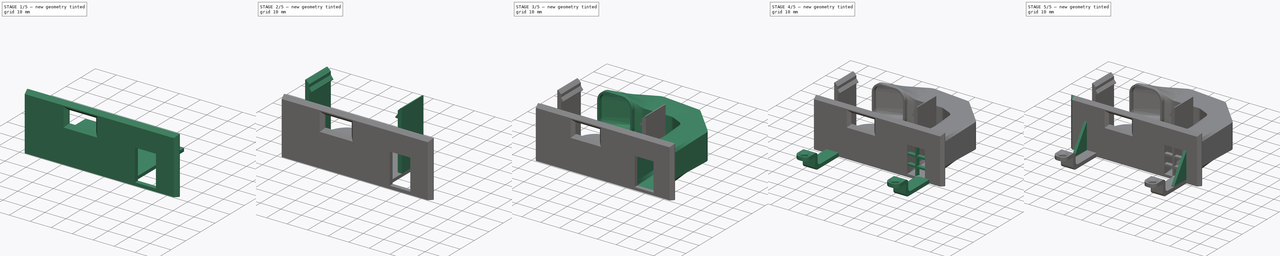
[diagram: build sequence overview — one tinted view per stage of 5, left to right]
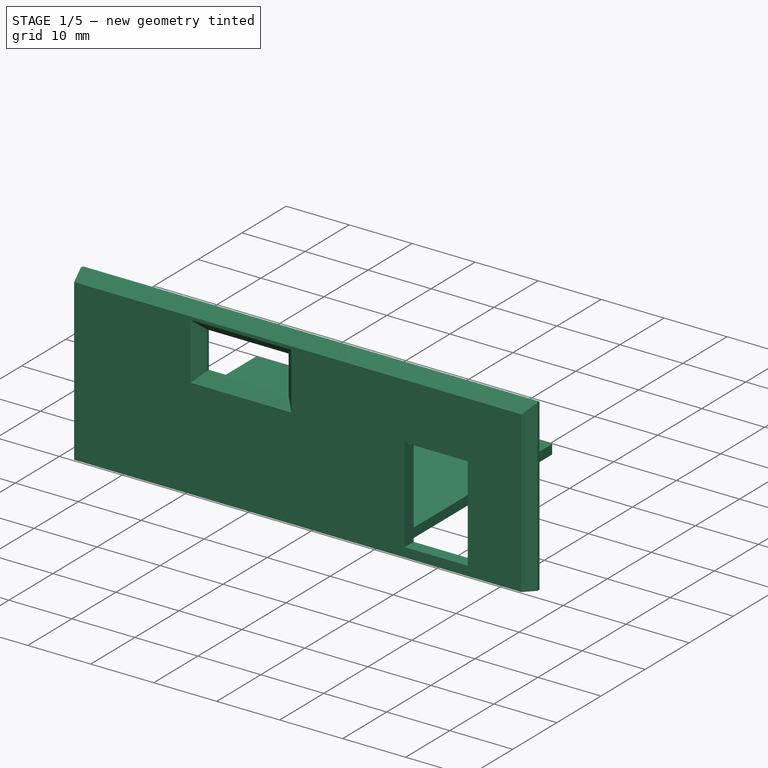
[diagram: stage 1 of 5 — iso view after this stage's code; geometry added in this stage tinted green]
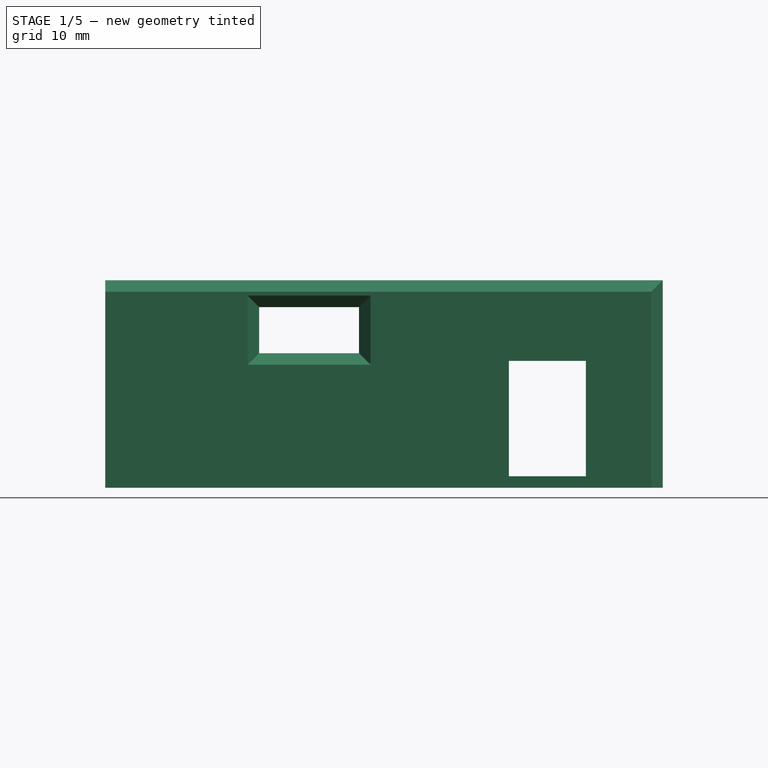
[diagram: stage 1 of 5 — front view after this stage's code; geometry added in this stage tinted green]
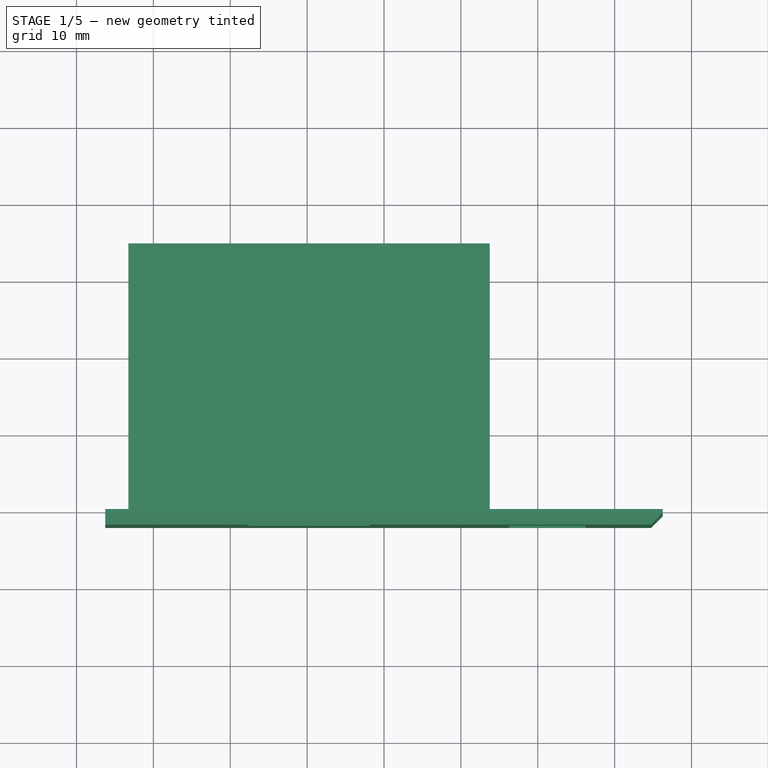
[diagram: stage 1 of 5 — top view after this stage's code; geometry added in this stage tinted green]
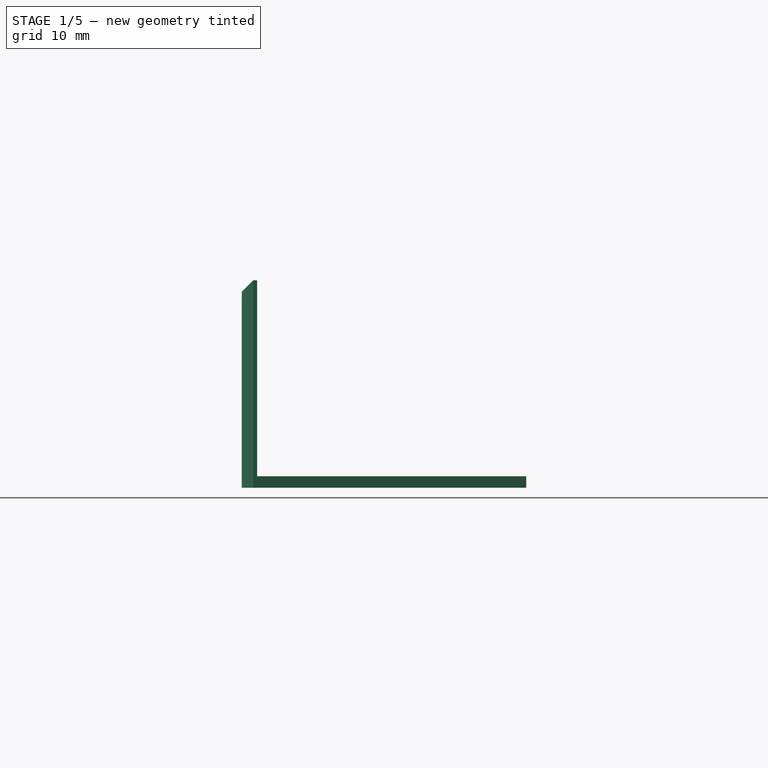
[diagram: stage 1 of 5 — right view after this stage's code; geometry added in this stage tinted green]
FCSTD DOCUMENT  (FreeCAD 0.20R29603 (Git))
Label: Encaixe honeywell
License: All rights reserved
LicenseURL: http://en.wikipedia.org/wiki/All_rights_reserved
objects: Sketcher::SketchObject×18, PartDesign::Pad×11, PartDesign::Chamfer×6, PartDesign::Fillet×6, PartDesign::Pocket×3, PartDesign::Plane×1, PartDesign::AdditiveLoft×1, PartDesign::Body×1
note: 74 computed .brp shape members not serialized (recipe doc carries the construction recipe); baked Part::Feature solids carry a one-line shape summary decoded from their .brp

FEATURE [Sketcher::SketchObject] Sketch
  FullyConstrained = true
  MapMode = 5
  Placement = pos=(0,0,0) rot=(1,0,0;1.5708rad)
  Support = -> [XZ_Plane]
  sketch-geometry (5):
    g0: LineSegment StartX=36.25 StartY=-13.5 StartZ=0 EndX=36.25 EndY=13.5 EndZ=0
    g1: LineSegment StartX=36.25 StartY=13.5 StartZ=0 EndX=-36.25 EndY=13.5 EndZ=0
    g2: LineSegment StartX=-36.25 StartY=13.5 StartZ=0 EndX=-36.25 EndY=-13.5 EndZ=0
    g3: LineSegment StartX=-36.25 StartY=-13.5 StartZ=0 EndX=36.25 EndY=-13.5 EndZ=0
    g4: GeomPoint X=0 Y=0 Z=0
  constraints (12):
    c: Coincident(g0,g1)
    c: Coincident(g1,g2)
    c: Coincident(g2,g3)
    c: Coincident(g3,g0)
    c: Horizontal(g1)
    c: Horizontal(g3)
    c: Vertical(g0)
    c: Vertical(g2)
    c: Symmetric(g1,g0,g4)
    c: Coincident(g4,g-1)
    c: DistanceX(g1,g1) = 72.5
    c: DistanceY(g2,g2) = 27
FEATURE [PartDesign::Pad] Pad
  Direction = (0,-1,-2e-16)
  Length = 2
  Length2 = 10
  Placement = pos=(0,0,0) rot=(1,0,0;1.5708rad)
  Profile = -> Sketch
  ReferenceAxis = -> Sketch [N_Axis]
  Type = 0
FEATURE [Sketcher::SketchObject] Sketch001
  ExternalGeometry = -> [Pad]
  FullyConstrained = true
  MapMode = 5
  Placement = pos=(0,-2,0) rot=(1,0,0;1.5708rad)
  Support = -> [Pad]
  sketch-geometry (4):
    g0: LineSegment StartX=-16.25 StartY=10 StartZ=0 EndX=-3.25 EndY=10 EndZ=0
    g1: LineSegment StartX=-3.25 StartY=10 StartZ=0 EndX=-3.25 EndY=4 EndZ=0
    g2: LineSegment StartX=-3.25 StartY=4 StartZ=0 EndX=-16.25 EndY=4 EndZ=0
    g3: LineSegment StartX=-16.25 StartY=4 StartZ=0 EndX=-16.25 EndY=10 EndZ=0
  constraints (12):
    c: Coincident(g0,g1)
    c: Coincident(g1,g2)
    c: Coincident(g2,g3)
    c: Coincident(g3,g0)
    c: Horizontal(g0)
    c: Horizontal(g2)
    c: Vertical(g1)
    c: Vertical(g3)
    c: DistanceY(g1,g1) = 6
    c: DistanceX(g0,g0) = 13
    c: DistanceX(g-3,g2) = 20
    c: DistanceY(g-3,g2) = 17.5
FEATURE [PartDesign::Pocket] Pocket
  BaseFeature = -> Pad
  Direction = (0,1,2e-16)
  Length = 5
  Length2 = 5
  Placement = pos=(0,0,0) rot=(1,0,0;1.5708rad)
  Profile = -> Sketch001
  ReferenceAxis = -> Sketch001 [N_Axis]
  Type = 0
FEATURE [PartDesign::Chamfer] Chamfer
  Angle = 45
  Base = -> Pocket [Edge10,Edge4,Edge17,Edge20,Edge18,Edge19]
  BaseFeature = -> Pocket
  ChamferType = 0
  FlipDirection = false
  Placement = pos=(0,0,0) rot=(1,0,0;1.5708rad)
  Size = 1.5
  Size2 = 1
  SupportTransform = false
  UseAllEdges = false
FEATURE [Sketcher::SketchObject] Sketch002
  ExternalGeometry = -> [Chamfer]
  FullyConstrained = true
  MapMode = 5
  Placement = pos=(0,-2,0) rot=(1,0,0;1.5708rad)
  Support = -> [Chamfer]
  sketch-geometry (5):
    g0: LineSegment StartX=11.75 StartY=-13.5 StartZ=0 EndX=11.75 EndY=0 EndZ=0
    g1: LineSegment StartX=16.25 StartY=-12 StartZ=0 EndX=26.25 EndY=-12 EndZ=0
    g2: LineSegment StartX=26.25 StartY=-12 StartZ=0 EndX=26.25 EndY=3 EndZ=0
    g3: LineSegment StartX=26.25 StartY=3 StartZ=0 EndX=16.25 EndY=3 EndZ=0
    g4: LineSegment StartX=16.25 StartY=3 StartZ=0 EndX=16.25 EndY=-12 EndZ=0
  constraints (16):
    c: PointOnObject(g0,g-3)
    c: Vertical(g0)
    c: DistanceX(g-3,g0) = 48
    c: Coincident(g1,g2)
    c: Coincident(g2,g3)
    c: Coincident(g3,g4)
    c: Coincident(g4,g1)
    c: Horizontal(g1)
    c: Horizontal(g3)
    c: Vertical(g2)
    c: Vertical(g4)
    c: DistanceX(g3,g3) = 10
    c: DistanceY(g2,g2) = 15
    c: DistanceY(g0,g1) = 1.5
    c: DistanceX(g0,g1) = 4.5
    c: PointOnObject(g0,g-1)
FEATURE [PartDesign::Pocket] Pocket001
  BaseFeature = -> Chamfer
  Direction = (0,1,2e-16)
  Length = 5
  Length2 = 5
  Placement = pos=(0,0,0) rot=(1,0,0;1.5708rad)
  Profile = -> Sketch002
  ReferenceAxis = -> Sketch002 [N_Axis]
  Type = 0
FEATURE [Sketcher::SketchObject] Sketch003
  ExternalGeometry = -> [Pocket001]
  FullyConstrained = true
  MapMode = 5
  Placement = pos=(0,0,0) rot=(-1,0,0;1.5708rad)
  Support = -> [Pocket001]
  sketch-geometry (10):
    g0: GeomPoint X=21.25 Y=4.5 Z=0
    g1: LineSegment StartX=27.25 StartY=-4 StartZ=0 EndX=27.25 EndY=13 EndZ=0
    g2: LineSegment StartX=27.25 StartY=13 StartZ=0 EndX=15.25 EndY=13 EndZ=0
    g3: LineSegment StartX=15.25 StartY=13 StartZ=0 EndX=15.25 EndY=-4 EndZ=0
    g4: LineSegment StartX=15.25 StartY=-4 StartZ=0 EndX=27.25 EndY=-4 EndZ=0
    g5: GeomPoint X=21.25 Y=4.5 Z=0
    g6: LineSegment StartX=16.25 StartY=12 StartZ=0 EndX=26.25 EndY=12 EndZ=0
    g7: LineSegment StartX=26.25 StartY=12 StartZ=0 EndX=26.25 EndY=-3 EndZ=0
    g8: LineSegment StartX=26.25 StartY=-3 StartZ=0 EndX=16.25 EndY=-3 EndZ=0
    g9: LineSegment StartX=16.25 StartY=-3 StartZ=0 EndX=16.25 EndY=12 EndZ=0
  constraints (23):
    c: Symmetric(g-3,g-4,g0)
    c: Coincident(g1,g2)
    c: Coincident(g2,g3)
    c: Coincident(g3,g4)
    c: Coincident(g4,g1)
    c: Horizontal(g2)
    c: Horizontal(g4)
    c: Vertical(g1)
    c: Vertical(g3)
    c: Symmetric(g2,g1,g5)
    c: Coincident(g5,g0)
    c: DistanceX(g2,g-3) = 1
    c: DistanceY(g-3,g2) = 1
    c: Coincident(g6,g7)
    c: Coincident(g7,g8)
    c: Coincident(g8,g9)
    c: Coincident(g9,g6)
    c: Horizontal(g6)
    c: Horizontal(g8)
    c: Vertical(g7)
    c: Vertical(g9)
    c: Coincident(g6,g-3)
    c: Coincident(g7,g-4)
FEATURE [Sketcher::SketchObject] Sketch004
  ExternalGeometry = -> [Pocket001]
  FullyConstrained = true
  MapMode = 5
  Placement = pos=(0,0,0) rot=(-1,0,0;1.5708rad)
  Support = -> [Pocket001]
  sketch-geometry (5):
    g0: LineSegment StartX=-33.25 StartY=13.5 StartZ=0 EndX=13.75 EndY=13.5 EndZ=0
    g1: LineSegment StartX=13.75 StartY=13.5 StartZ=0 EndX=13.75 EndY=12 EndZ=0
    g2: LineSegment StartX=13.75 StartY=12 StartZ=0 EndX=-33.25 EndY=12 EndZ=0
    g3: LineSegment StartX=-33.25 StartY=12 StartZ=0 EndX=-33.25 EndY=13.5 EndZ=0
    g4: LineSegment StartX=-9.75 StartY=-4 StartZ=0 EndX=-9.75 EndY=12 EndZ=0
  constraints (14):
    c: Coincident(g0,g1)
    c: Coincident(g1,g2)
    c: Coincident(g2,g3)
    c: Coincident(g3,g0)
    c: Horizontal(g0)
    c: Horizontal(g2)
    c: Vertical(g1)
    c: Vertical(g3)
    c: Vertical(g4)
    c: Symmetric(g-3,g-3,g4)
    c: Symmetric(g1,g2,g4)
    c: PointOnObject(g0,g-4)
    c: DistanceY(g1,g1) = 1.5
    c: DistanceX(g0,g0) = 47
FEATURE [PartDesign::Pad] Pad001
  BaseFeature = -> Pocket001
  Direction = (0,1,2e-16)
  Length = 35
  Length2 = 10
  Placement = pos=(0,0,0) rot=(1,0,0;1.5708rad)
  Profile = -> Sketch004
  ReferenceAxis = -> Sketch004 [N_Axis]
  Type = 0
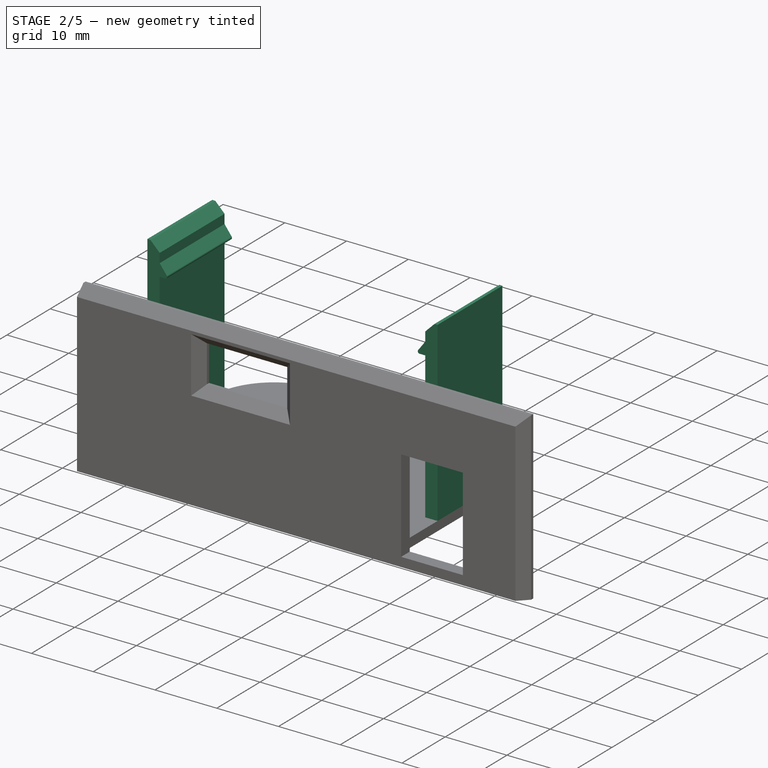
[diagram: stage 2 of 5 — iso view after this stage's code; geometry added in this stage tinted green]
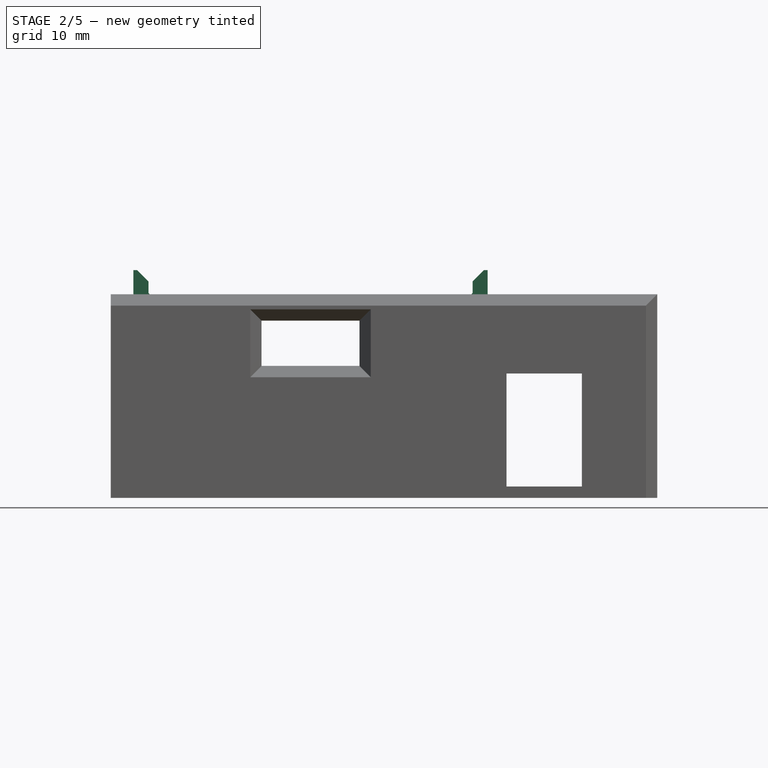
[diagram: stage 2 of 5 — front view after this stage's code; geometry added in this stage tinted green]
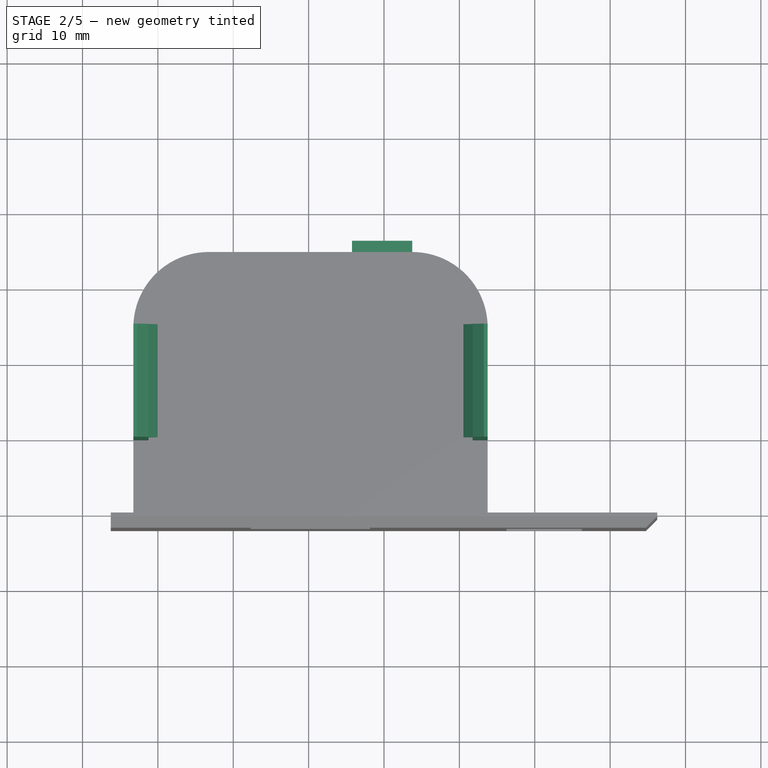
[diagram: stage 2 of 5 — top view after this stage's code; geometry added in this stage tinted green]
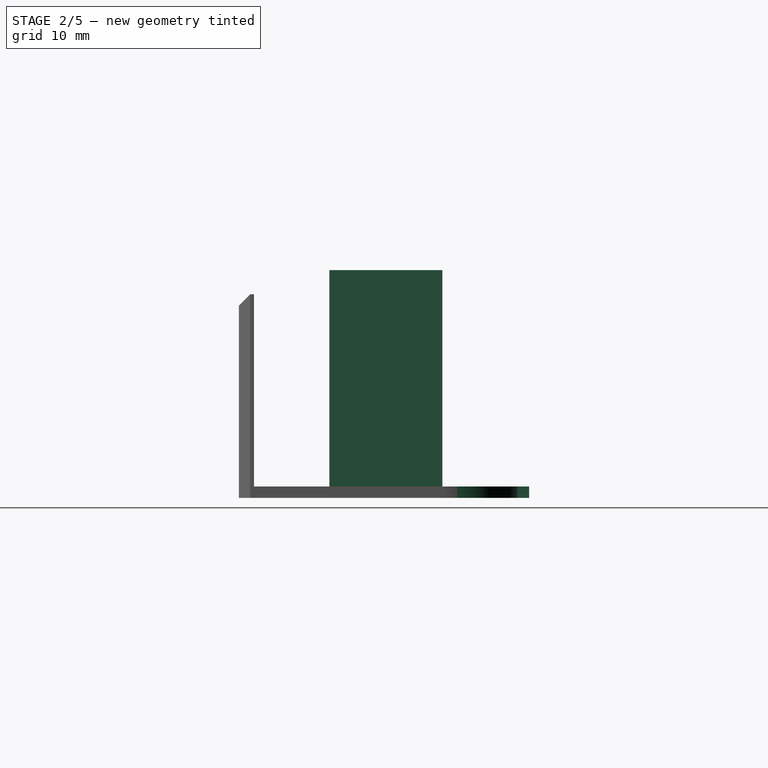
[diagram: stage 2 of 5 — right view after this stage's code; geometry added in this stage tinted green]
FEATURE [Sketcher::SketchObject] Sketch005
  ExternalGeometry = -> [Pad001]
  FullyConstrained = true
  MapMode = 5
  Placement = pos=(0,-2.7e-15,-12) rot=(0,0,1;3.14159rad)
  Support = -> [Pad001]
  sketch-geometry (11):
    g0: LineSegment StartX=-13.75 StartY=-10 StartZ=0 EndX=-11.75 EndY=-10 EndZ=0
    g1: LineSegment StartX=-11.75 StartY=-10 StartZ=0 EndX=-11.75 EndY=-25 EndZ=0
    g2: LineSegment StartX=-11.75 StartY=-25 StartZ=0 EndX=-13.75 EndY=-25 EndZ=0
    g3: LineSegment StartX=-13.75 StartY=-25 StartZ=0 EndX=-13.75 EndY=-10 EndZ=0
    g4: LineSegment StartX=33.25 StartY=-10 StartZ=0 EndX=31.25 EndY=-10 EndZ=0
    g5: LineSegment StartX=31.25 StartY=-10 StartZ=0 EndX=31.25 EndY=-25 EndZ=0
    g6: LineSegment StartX=31.25 StartY=-25 StartZ=0 EndX=33.25 EndY=-25 EndZ=0
    g7: LineSegment StartX=33.25 StartY=-25 StartZ=0 EndX=33.25 EndY=-10 EndZ=0
    g8: GeomPoint X=-13.75 Y=-17.5 Z=0
    g9: GeomPoint X=33.25 Y=-17.5 Z=0
    g10: LineSegment StartX=33.25 StartY=-17.5 StartZ=0 EndX=-13.75 EndY=-17.5 EndZ=0
  constraints (27):
    c: Coincident(g0,g1)
    c: Coincident(g1,g2)
    c: Coincident(g2,g3)
    c: Coincident(g3,g0)
    c: Horizontal(g0)
    c: Horizontal(g2)
    c: Vertical(g1)
    c: Vertical(g3)
    c: PointOnObject(g0,g-3)
    c: Coincident(g4,g5)
    c: Coincident(g5,g6)
    c: Coincident(g6,g7)
    c: Coincident(g7,g4)
    c: Horizontal(g4)
    c: Horizontal(g6)
    c: Vertical(g5)
    c: Vertical(g7)
    c: Symmetric(g0,g2,g8)
    c: Symmetric(g4,g6,g9)
    c: Equal(g1,g5)
    c: Equal(g4,g0)
    c: Coincident(g10,g9)
    c: Coincident(g10,g8)
    c: Horizontal(g10)
    c: DistanceX(g0,g0) = 2
    c: Symmetric(g-4,g-4,g9)
    c: DistanceY(g5,g5) = 15
FEATURE [PartDesign::Pad] Pad002
  BaseFeature = -> Pad001
  Direction = (0,-2e-16,1)
  Length = 23.7
  Length2 = 10
  Placement = pos=(0,0,0) rot=(1,0,0;1.5708rad)
  Profile = -> Sketch005
  ReferenceAxis = -> Sketch005 [N_Axis]
  Type = 0
FEATURE [Sketcher::SketchObject] Sketch006
  ExternalGeometry = -> [Pad002]
  FullyConstrained = true
  MapMode = 5
  Placement = pos=(0,25,-5.6e-15) rot=(-1,0,0;1.5708rad)
  Support = -> [Pad002]
  sketch-geometry (10):
    g0: LineSegment StartX=13.75 StartY=-11.7 StartZ=0 EndX=10.25 EndY=-11.7 EndZ=0
    g1: LineSegment StartX=10.25 StartY=-11.7 StartZ=0 EndX=11.75 EndY=-13.7 EndZ=0
    g2: LineSegment StartX=11.75 StartY=-13.7 StartZ=0 EndX=11.75 EndY=-16.7 EndZ=0
    g3: LineSegment StartX=11.75 StartY=-16.7 StartZ=0 EndX=13.75 EndY=-16.7 EndZ=0
    g4: LineSegment StartX=13.75 StartY=-16.7 StartZ=0 EndX=13.75 EndY=-11.7 EndZ=0
    g5: LineSegment StartX=-29.75 StartY=-11.7 StartZ=0 EndX=-33.25 EndY=-11.7 EndZ=0
    g6: LineSegment StartX=-33.25 StartY=-11.7 StartZ=0 EndX=-33.25 EndY=-16.7 EndZ=0
    g7: LineSegment StartX=-33.25 StartY=-16.7 StartZ=0 EndX=-31.25 EndY=-16.7 EndZ=0
    g8: LineSegment StartX=-31.25 StartY=-16.7 StartZ=0 EndX=-31.25 EndY=-13.7 EndZ=0
    g9: LineSegment StartX=-31.25 StartY=-13.7 StartZ=0 EndX=-29.75 EndY=-11.7 EndZ=0
  constraints (28):
    c: Horizontal(g0)
    c: Coincident(g0,g1)
    c: Coincident(g1,g2)
    c: Vertical(g2)
    c: Coincident(g2,g3)
    c: Coincident(g3,g4)
    c: Coincident(g4,g0)
    c: Vertical(g4)
    c: Horizontal(g5)
    c: Coincident(g5,g6)
    c: Vertical(g6)
    c: Coincident(g6,g7)
    c: Coincident(g7,g8)
    c: Vertical(g8)
    c: Coincident(g8,g9)
    c: Coincident(g9,g5)
    c: Coincident(g0,g-3)
    c: Coincident(g5,g-4)
    c: Equal(g7,g3)
    c: PointOnObject(g-3,g2)
    c: Equal(g0,g5)
    c: DistanceX(g0,g-3) = 1.5
    c: Equal(g2,g8)
    c: Horizontal(g3)
    c: Horizontal(g7)
    c: Equal(g4,g6)
    c: DistanceY(g4,g4) = 5
    c: DistanceY(g1,g-3) = 2
FEATURE [PartDesign::Pad] Pad003
  BaseFeature = -> Pad002
  Direction = (0,1,2e-16)
  Length = 10
  Length2 = 10
  Placement = pos=(0,0,0) rot=(1,0,0;1.5708rad)
  Profile = -> Sketch006
  ReferenceAxis = -> Sketch006 [N_Axis]
  Refine = true
  Reversed = true
  Type = 3
  UpToFace = -> Pad002 [Face32]
FEATURE [PartDesign::Chamfer] Chamfer001
  Angle = 45
  Base = -> Pad003 [Edge93,Edge84]
  BaseFeature = -> Pad003
  ChamferType = 0
  FlipDirection = false
  Placement = pos=(0,0,0) rot=(1,0,0;1.5708rad)
  Size = 1.5
  Size2 = 1
  SupportTransform = false
  UseAllEdges = false
FEATURE [PartDesign::Fillet] Fillet
  Base = -> Chamfer001 [Edge105,Edge34]
  BaseFeature = -> Chamfer001
  Placement = pos=(0,0,0) rot=(1,0,0;1.5708rad)
  Radius = 0.3
  SupportTransform = false
  UseAllEdges = false
FEATURE [PartDesign::Fillet] Fillet001
  Base = -> Fillet [Edge54,Edge36]
  BaseFeature = -> Fillet
  Placement = pos=(0,0,0) rot=(1,0,0;1.5708rad)
  Radius = 10
  SupportTransform = false
  UseAllEdges = false
FEATURE [Sketcher::SketchObject] Sketch007
  ExternalGeometry = -> [Fillet001]
  FullyConstrained = true
  MapMode = 5
  Placement = pos=(0,-2.7e-15,-12) rot=(0,0,1;3.14159rad)
  Support = -> [Fillet001]
  sketch-geometry (4):
    g0: LineSegment StartX=-3.75 StartY=-35 StartZ=0 EndX=4.25 EndY=-35 EndZ=0
    g1: LineSegment StartX=4.25 StartY=-35 StartZ=0 EndX=4.25 EndY=-36.5 EndZ=0
    g2: LineSegment StartX=4.25 StartY=-36.5 StartZ=0 EndX=-3.75 EndY=-36.5 EndZ=0
    g3: LineSegment StartX=-3.75 StartY=-36.5 StartZ=0 EndX=-3.75 EndY=-35 EndZ=0
  constraints (11):
    c: Coincident(g0,g1)
    c: Coincident(g1,g2)
    c: Coincident(g2,g3)
    c: Coincident(g3,g0)
    c: Horizontal(g0)
    c: Horizontal(g2)
    c: Vertical(g1)
    c: Vertical(g3)
    c: DistanceX(g0,g0) = 8
    c: Coincident(g0,g-4)
    c: DistanceY(g1,g1) = 1.5
FEATURE [PartDesign::Pad] Pad004
  BaseFeature = -> Fillet001
  Direction = (0,-2e-16,1)
  Length = 10
  Length2 = 10
  Placement = pos=(0,0,0) rot=(1,0,0;1.5708rad)
  Profile = -> Sketch007
  ReferenceAxis = -> Sketch007 [N_Axis]
  Reversed = true
  Type = 3
  UpToFace = -> Fillet001 [Face14]
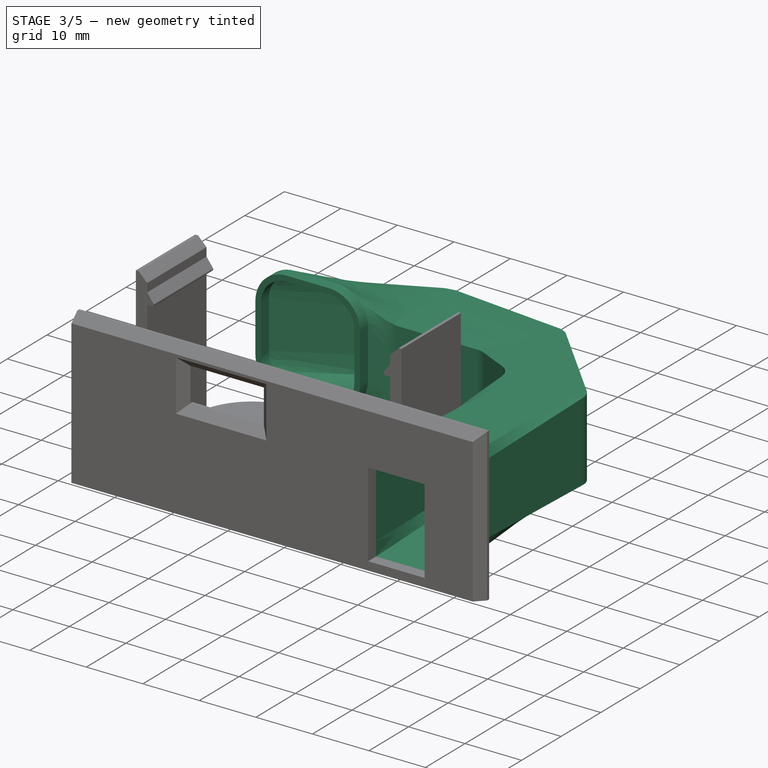
[diagram: stage 3 of 5 — iso view after this stage's code; geometry added in this stage tinted green]
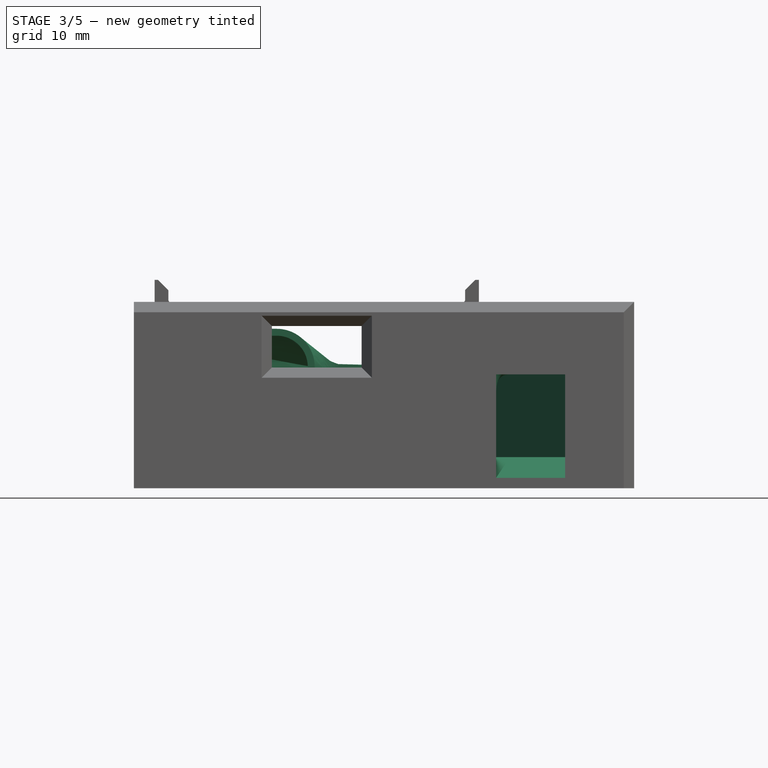
[diagram: stage 3 of 5 — front view after this stage's code; geometry added in this stage tinted green]
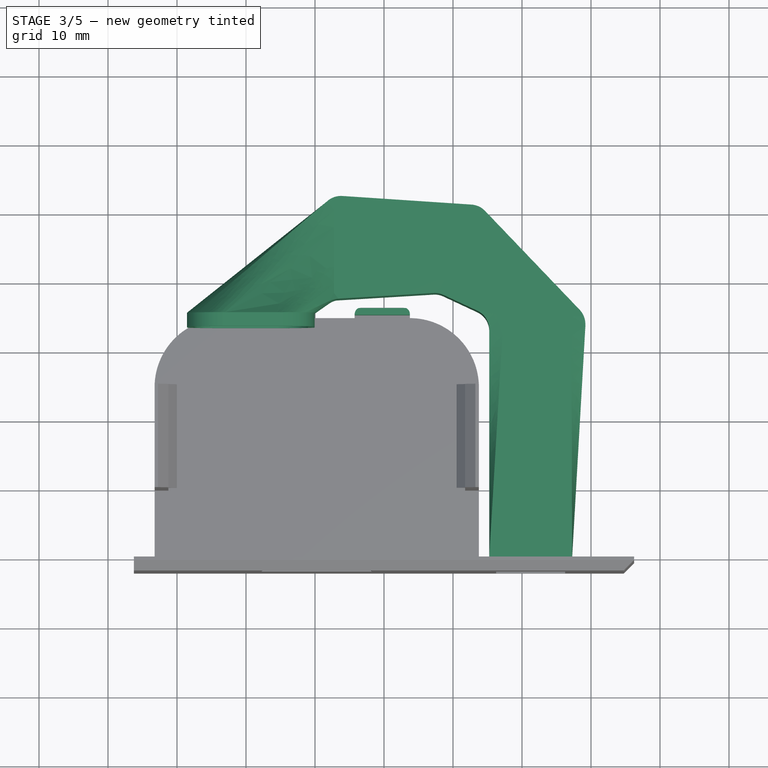
[diagram: stage 3 of 5 — top view after this stage's code; geometry added in this stage tinted green]
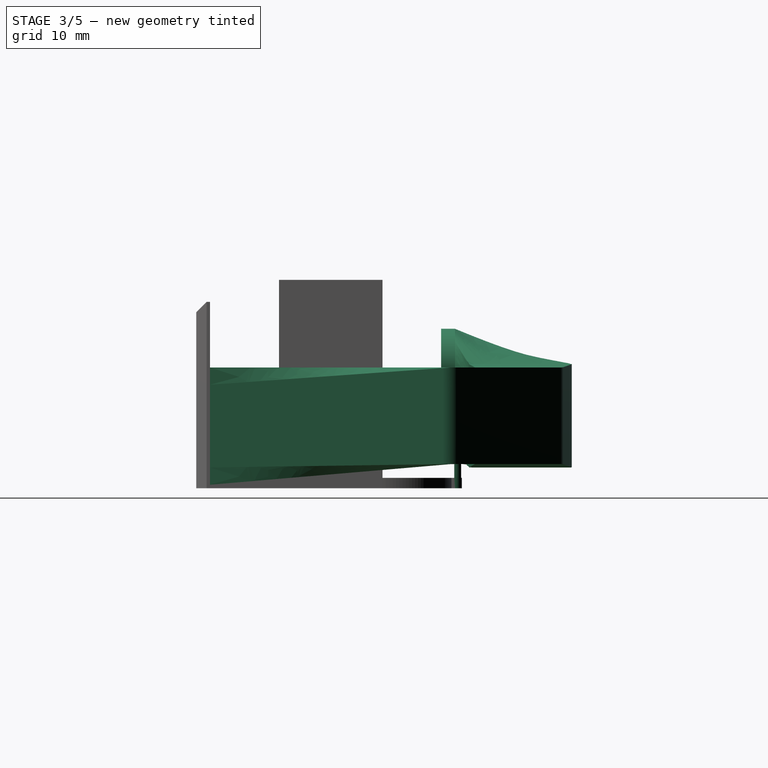
[diagram: stage 3 of 5 — right view after this stage's code; geometry added in this stage tinted green]
FEATURE [Sketcher::SketchObject] Sketch008
  ExternalGeometry = -> [Pad004]
  FullyConstrained = true
  MapMode = 5
  Placement = pos=(0,1.15e-14,-12) rot=(0,0,1;3.14159rad)
  Support = -> [Pad004]
  sketch-geometry (4):
    g0: LineSegment StartX=-3.75 StartY=-35.4 StartZ=0 EndX=4.25 EndY=-35.4 EndZ=0
    g1: LineSegment StartX=4.25 StartY=-35.4 StartZ=0 EndX=4.25 EndY=-36.4 EndZ=0
    g2: LineSegment StartX=4.25 StartY=-36.4 StartZ=0 EndX=-3.75 EndY=-36.4 EndZ=0
    g3: LineSegment StartX=-3.75 StartY=-36.4 StartZ=0 EndX=-3.75 EndY=-35.4 EndZ=0
  constraints (12):
    c: Coincident(g0,g1)
    c: Coincident(g1,g2)
    c: Coincident(g2,g3)
    c: Coincident(g3,g0)
    c: Horizontal(g0)
    c: Horizontal(g2)
    c: Vertical(g1)
    c: Vertical(g3)
    c: DistanceY(g1,g1) = 1
    c: DistanceX(g0,g0) = 8
    c: DistanceY(g0,g-4) = 35.4
    c: PointOnObject(g0,g-3)
FEATURE [PartDesign::Pad] Pad005
  BaseFeature = -> Pad004
  Direction = (0,-1.2e-15,1)
  Length = 4
  Length2 = 10
  Placement = pos=(0,0,0) rot=(1,0,0;1.5708rad)
  Profile = -> Sketch008
  ReferenceAxis = -> Sketch008 [N_Axis]
  Refine = true
  Type = 0
FEATURE [PartDesign::Fillet] Fillet002
  Base = -> Pad005 [Edge128,Edge130]
  BaseFeature = -> Pad005
  Placement = pos=(0,0,0) rot=(1,0,0;1.5708rad)
  Radius = 1
  SupportTransform = false
  UseAllEdges = false
FEATURE [Sketcher::SketchObject] Sketch009
  AttachmentOffset = pos=(0,0,35) rot=(0,-1,0;0rad)
  ExternalGeometry = -> [Fillet002,Sketch003]
  FullyConstrained = true
  MapMode = 5
  Placement = pos=(0,35,7.8e-15) rot=(-1,0,0;1.5708rad)
  Support = -> [Fillet002]
  sketch-geometry (8):
    g0: LineSegment StartX=15.25 StartY=10 StartZ=0 EndX=29.25 EndY=10 EndZ=0
    g1: LineSegment StartX=29.25 StartY=10 StartZ=0 EndX=29.25 EndY=-4 EndZ=0
    g2: LineSegment StartX=29.25 StartY=-4 StartZ=0 EndX=15.25 EndY=-4 EndZ=0
    g3: LineSegment StartX=15.25 StartY=-4 StartZ=0 EndX=15.25 EndY=10 EndZ=0
    g4: LineSegment StartX=16.25 StartY=9 StartZ=0 EndX=28.25 EndY=9 EndZ=0
    g5: LineSegment StartX=28.25 StartY=9 StartZ=0 EndX=28.25 EndY=-3 EndZ=0
    g6: LineSegment StartX=28.25 StartY=-3 StartZ=0 EndX=16.25 EndY=-3 EndZ=0
    g7: LineSegment StartX=16.25 StartY=-3 StartZ=0 EndX=16.25 EndY=9 EndZ=0
  constraints (24):
    c: Coincident(g0,g1)
    c: Coincident(g1,g2)
    c: Coincident(g2,g3)
    c: Coincident(g3,g0)
    c: Horizontal(g0)
    c: Horizontal(g2)
    c: Vertical(g1)
    c: Vertical(g3)
    c: DistanceY(g0,g-3) = 2
    c: Equal(g0,g1)
    c: DistanceX(g0,g0) = 14
    c: PointOnObject(g-4,g3)
    c: Coincident(g4,g5)
    c: Coincident(g5,g6)
    c: Coincident(g6,g7)
    c: Coincident(g7,g4)
    c: Horizontal(g4)
    c: Horizontal(g6)
    c: Vertical(g5)
    c: Vertical(g7)
    c: DistanceY(g1,g5) = 1
    c: DistanceX(g5,g1) = 1
    c: DistanceY(g4,g0) = 1
    c: DistanceX(g0,g4) = 1
FEATURE [Sketcher::SketchObject] Sketch010
  AttachmentOffset = pos=(0,0,3) rot=(0,0,1;0rad)
  ExternalGeometry = -> [Sketch009,Fillet002]
  FullyConstrained = true
  MapMode = 5
  Placement = pos=(-7.25,-9e-16,-1.7e-15) rot=(0.707107,0,-0.707107;3.14159rad)
  Support = -> [Fillet002]
  sketch-geometry (12):
    g0: GeomPoint X=3 Y=-35 Z=0
    g1: LineSegment StartX=3 StartY=-35 StartZ=0 EndX=3 EndY=-45 EndZ=0
    g2: LineSegment StartX=-4.5 StartY=-52.5 StartZ=0 EndX=-4.5 EndY=-37.5 EndZ=0
    g3: LineSegment StartX=-4.5 StartY=-37.5 StartZ=0 EndX=10.5 EndY=-37.5 EndZ=0
    g4: LineSegment StartX=10.5 StartY=-37.5 StartZ=0 EndX=10.5 EndY=-52.5 EndZ=0
    g5: LineSegment StartX=10.5 StartY=-52.5 StartZ=0 EndX=-4.5 EndY=-52.5 EndZ=0
    g6: GeomPoint X=3 Y=-45 Z=0
    g7: LineSegment StartX=-3.5 StartY=-51.5 StartZ=0 EndX=-3.5 EndY=-38.5 EndZ=0
    g8: LineSegment StartX=-3.5 StartY=-38.5 StartZ=0 EndX=9.5 EndY=-38.5 EndZ=0
    g9: LineSegment StartX=9.5 StartY=-38.5 StartZ=0 EndX=9.5 EndY=-51.5 EndZ=0
    g10: LineSegment StartX=9.5 StartY=-51.5 StartZ=0 EndX=-3.5 EndY=-51.5 EndZ=0
    g11: GeomPoint X=3 Y=-45 Z=0
  constraints (28):
    c: Symmetric(g-3,g-3,g0)
    c: Coincident(g1,g0)
    c: Vertical(g1)
    c: Coincident(g2,g3)
    c: Coincident(g3,g4)
    c: Coincident(g4,g5)
    c: Coincident(g5,g2)
    c: Horizontal(g3)
    c: Horizontal(g5)
    c: Vertical(g2)
    c: Vertical(g4)
    c: Symmetric(g3,g2,g6)
    c: Coincident(g6,g1)
    c: Coincident(g7,g8)
    c: Coincident(g8,g9)
    c: Coincident(g9,g10)
    c: Coincident(g10,g7)
    c: Horizontal(g8)
    c: Horizontal(g10)
    c: Vertical(g7)
    c: Vertical(g9)
    c: Symmetric(g8,g7,g11)
    c: Coincident(g11,g1)
    c: Equal(g3,g4)
    c: DistanceX(g3,g3) = 15
    c: Equal(g8,g7)
    c: DistanceX(g8,g8) = 13
    c: DistanceY(g8,g-4) = 2
FEATURE [Sketcher::SketchObject] Sketch011
  AttachmentOffset = pos=(0,0,35.5) rot=(0,0,1;0rad)
  ExternalGeometry = -> [Fillet002]
  FullyConstrained = true
  MapMode = 5
  Placement = pos=(0,35.5,7.9e-15) rot=(-1,0,0;1.5708rad)
  Support = -> [Fillet002]
  sketch-geometry (27):
    g0: LineSegment StartX=11.75 StartY=11.9 StartZ=0 EndX=11.75 EndY=-11.6 EndZ=0
    g1: LineSegment StartX=11.75 StartY=-11.6 StartZ=0 EndX=-31.25 EndY=-11.6 EndZ=0
    g2: LineSegment StartX=-31.25 StartY=-11.6 StartZ=0 EndX=-31.25 EndY=11.9 EndZ=0
    g3: LineSegment StartX=-31.25 StartY=11.9 StartZ=0 EndX=11.75 EndY=11.9 EndZ=0
    g4: GeomPoint X=-9.75 Y=0.15 Z=0
    g5: ArcOfCircle CenterX=-23.05 CenterY=4.4 CenterZ=0 NormalX=0 NormalY=0 NormalZ=1 AngleXU=0 Radius=5.5 StartAngle=1.5708 EndAngle=3.14159
    g6: LineSegment StartX=-23.05 StartY=9.9 StartZ=0 EndX=-15.55 EndY=9.9 EndZ=0
    g7: ArcOfCircle CenterX=-15.55 CenterY=4.4 CenterZ=0 NormalX=0 NormalY=0 NormalZ=1 AngleXU=0 Radius=5.5 StartAngle=1e-16 EndAngle=1.5708
    g8: LineSegment StartX=-10.05 StartY=4.4 StartZ=0 EndX=-10.05 EndY=-4.1 EndZ=0
    g9: ArcOfCircle CenterX=-15.55 CenterY=-4.1 CenterZ=0 NormalX=0 NormalY=0 NormalZ=1 AngleXU=0 Radius=5.5 StartAngle=4.71239 EndAngle=6.28319
    g10: LineSegment StartX=-15.55 StartY=-9.6 StartZ=0 EndX=-23.05 EndY=-9.6 EndZ=0
    g11: ArcOfCircle CenterX=-23.05 CenterY=-4.1 CenterZ=0 NormalX=0 NormalY=0 NormalZ=1 AngleXU=0 Radius=5.5 StartAngle=3.14159 EndAngle=4.71239
    g12: LineSegment StartX=-28.55 StartY=-4.1 StartZ=0 EndX=-28.55 EndY=4.4 EndZ=0
    g13: GeomPoint X=-28.55 Y=9.9 Z=0
    g14: GeomPoint X=-10.05 Y=-9.6 Z=0
    g15: GeomPoint X=-19.3 Y=0.15 Z=0
    g16: LineSegment StartX=-19.3 StartY=0.15 StartZ=0 EndX=-9.75 EndY=0.15 EndZ=0
    g17: ArcOfCircle CenterX=-23.05 CenterY=4.4 CenterZ=0 NormalX=0 NormalY=0 NormalZ=1 AngleXU=0 Radius=4.5 StartAngle=1.5708 EndAngle=3.14159
    g18: LineSegment StartX=-23.05 StartY=8.9 StartZ=0 EndX=-15.55 EndY=8.9 EndZ=0
    g19: ArcOfCircle CenterX=-15.55 CenterY=4.4 CenterZ=0 NormalX=0 NormalY=0 NormalZ=1 AngleXU=0 Radius=4.5 StartAngle=2e-16 EndAngle=1.5708
    g20: LineSegment StartX=-11.05 StartY=4.4 StartZ=0 EndX=-11.05 EndY=-4.1 EndZ=0
    g21: ArcOfCircle CenterX=-15.55 CenterY=-4.1 CenterZ=0 NormalX=0 NormalY=0 NormalZ=1 AngleXU=0 Radius=4.5 StartAngle=4.71239 EndAngle=6.28319
    g22: LineSegment StartX=-15.55 StartY=-8.6 StartZ=0 EndX=-23.05 EndY=-8.6 EndZ=0
    g23: ArcOfCircle CenterX=-23.05 CenterY=-4.1 CenterZ=0 NormalX=0 NormalY=0 NormalZ=1 AngleXU=0 Radius=4.5 StartAngle=3.14159 EndAngle=4.71239
    g24: LineSegment StartX=-27.55 StartY=-4.1 StartZ=0 EndX=-27.55 EndY=4.4 EndZ=0
    g25: GeomPoint X=-27.55 Y=8.9 Z=0
    g26: GeomPoint X=-11.05 Y=-8.6 Z=0
  constraints (60):
    c: Coincident(g0,g1)
    c: Coincident(g1,g2)
    c: Coincident(g2,g3)
    c: Coincident(g3,g0)
    c: Horizontal(g1)
    c: Horizontal(g3)
    c: Vertical(g0)
    c: Vertical(g2)
    c: Symmetric(g1,g0,g4)
    c: DistanceX(g3,g3) = 43
    c: DistanceY(g2,g2) = 23.5
    c: Symmetric(g-5,g-4,g4)
    c: Tangent(g5,g6) = 1.5708
    c: Tangent(g6,g7) = 1.5708
    c: Tangent(g7,g8) = 1.5708
    c: Tangent(g8,g9) = 1.5708
    c: Tangent(g9,g10) = 1.5708
    c: Tangent(g10,g11) = 1.5708
    c: Tangent(g11,g12) = 1.5708
    c: Tangent(g12,g5) = 1.5708
    c: Horizontal(g6)
    c: Horizontal(g10)
    c: Vertical(g8)
    c: Vertical(g12)
    c: Equal(g5,g7)
    c: Equal(g7,g9)
    c: Equal(g9,g11)
    c: PointOnObject(g13,g6)
    c: PointOnObject(g13,g12)
    c: PointOnObject(g14,g8)
    c: PointOnObject(g14,g10)
    c: DistanceY(g9,g9) = 5.5
    c: DistanceY(g10,g5) = 19.5
    c: DistanceX(g5,g7) = 18.5
    c: Symmetric(g5,g9,g15)
    c: Coincident(g16,g15)
    c: Coincident(g16,g4)
    c: Horizontal(g16)
    c: DistanceX(g2,g5) = 2.7
    c: Tangent(g17,g18) = 1.5708
    c: Tangent(g18,g19) = 1.5708
    c: Tangent(g19,g20) = 1.5708
    c: Tangent(g20,g21) = 1.5708
    c: Tangent(g21,g22) = 1.5708
    c: Tangent(g22,g23) = 1.5708
    c: Tangent(g23,g24) = 1.5708
    c: Tangent(g24,g17) = 1.5708
    c: Horizontal(g18)
    c: Horizontal(g22)
    c: Vertical(g20)
    c: Vertical(g24)
    c: Equal(g19,g21)
    c: PointOnObject(g25,g18)
    c: PointOnObject(g25,g24)
    c: PointOnObject(g26,g20)
    c: PointOnObject(g26,g22)
    c: Coincident(g19,g7)
    c: Coincident(g17,g5)
    c: Coincident(g23,g11)
    c: DistanceY(g10,g22) = 1
FEATURE [PartDesign::Plane] DatumPlane
  AttachmentOffset = pos=(11,0,20) rot=(0,-1,0;1.13446rad)
  Length = 118.595
  MapMode = 5
  Placement = pos=(11,45,-1e-14) rot=(-0.742942,-0.473306,0.473306;1.86366rad)
  ResizeMode = 0
  Support = -> [Fillet002]
  Width = 64.4334
FEATURE [Sketcher::SketchObject] Sketch012
  ExternalGeometry = -> [Sketch009]
  FullyConstrained = true
  MapMode = 5
  Placement = pos=(11,45,-1e-14) rot=(-0.742942,-0.473306,0.473306;1.86366rad)
  Support = -> [DatumPlane]
  sketch-geometry (8):
    g0: LineSegment StartX=-7.26695 StartY=10 StartZ=0 EndX=6.73305 EndY=10 EndZ=0
    g1: LineSegment StartX=6.73305 StartY=10 StartZ=0 EndX=6.73305 EndY=-4 EndZ=0
    g2: LineSegment StartX=6.73305 StartY=-4 StartZ=0 EndX=-7.26695 EndY=-4 EndZ=0
    g3: LineSegment StartX=-7.26695 StartY=-4 StartZ=0 EndX=-7.26695 EndY=10 EndZ=0
    g4: LineSegment StartX=-6.26695 StartY=9 StartZ=0 EndX=5.73305 EndY=9 EndZ=0
    g5: LineSegment StartX=5.73305 StartY=9 StartZ=0 EndX=5.73305 EndY=-3 EndZ=0
    g6: LineSegment StartX=5.73305 StartY=-3 StartZ=0 EndX=-6.26695 EndY=-3 EndZ=0
    g7: LineSegment StartX=-6.26695 StartY=-3 StartZ=0 EndX=-6.26695 EndY=9 EndZ=0
  constraints (22):
    c: Coincident(g0,g1)
    c: Coincident(g1,g2)
    c: Coincident(g2,g3)
    c: Coincident(g3,g0)
    c: Horizontal(g0)
    c: Horizontal(g2)
    c: Vertical(g1)
    c: Coincident(g0,g-3)
    c: Coincident(g2,g-3)
    c: Equal(g3,g0)
    c: Coincident(g4,g5)
    c: Coincident(g5,g6)
    c: Coincident(g6,g7)
    c: Coincident(g7,g4)
    c: Horizontal(g4)
    c: Horizontal(g6)
    c: Vertical(g5)
    c: Vertical(g7)
    c: DistanceX(g5,g1) = 1
    c: DistanceY(g1,g5) = 1
    c: DistanceX(g0,g4) = 1
    c: DistanceY(g4,g0) = 1
FEATURE [PartDesign::AdditiveLoft] AdditiveLoft
  BaseFeature = -> Fillet002
  Closed = false
  Placement = pos=(0,0,0) rot=(1,0,0;1.5708rad)
  Profile = -> Sketch011
  Ruled = true
  Sections = -> [Sketch010,Sketch012,Sketch009,Sketch003]
FEATURE [PartDesign::Pad] Pad006
  BaseFeature = -> AdditiveLoft
  Direction = (0,-1,1e-16)
  Length = 2
  Length2 = 10
  Placement = pos=(0,0,0) rot=(1,0,0;1.5708rad)
  Profile = -> AdditiveLoft [Face166]
  Type = 0
FEATURE [PartDesign::Fillet] Fillet003
  Base = -> Pad006 [Edge260,Edge153,Edge137,Edge244,Edge230,Edge324,Edge308,Edge214,Edge298,Edge388,Edge372,Edge282]
  BaseFeature = -> Pad006
  Placement = pos=(0,0,0) rot=(1,0,0;1.5708rad)
  Radius = 3
  SupportTransform = false
  UseAllEdges = false
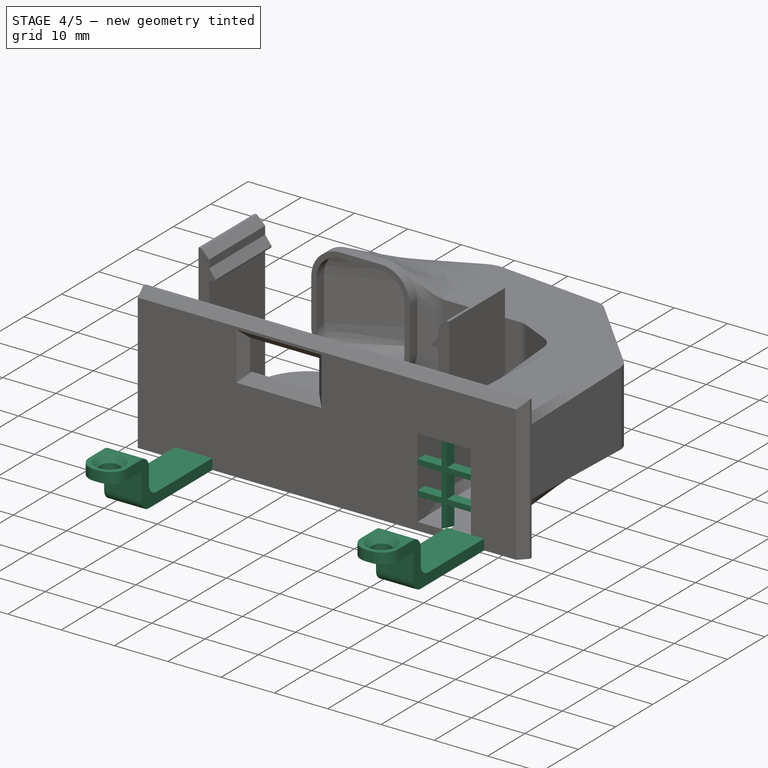
[diagram: stage 4 of 5 — iso view after this stage's code; geometry added in this stage tinted green]
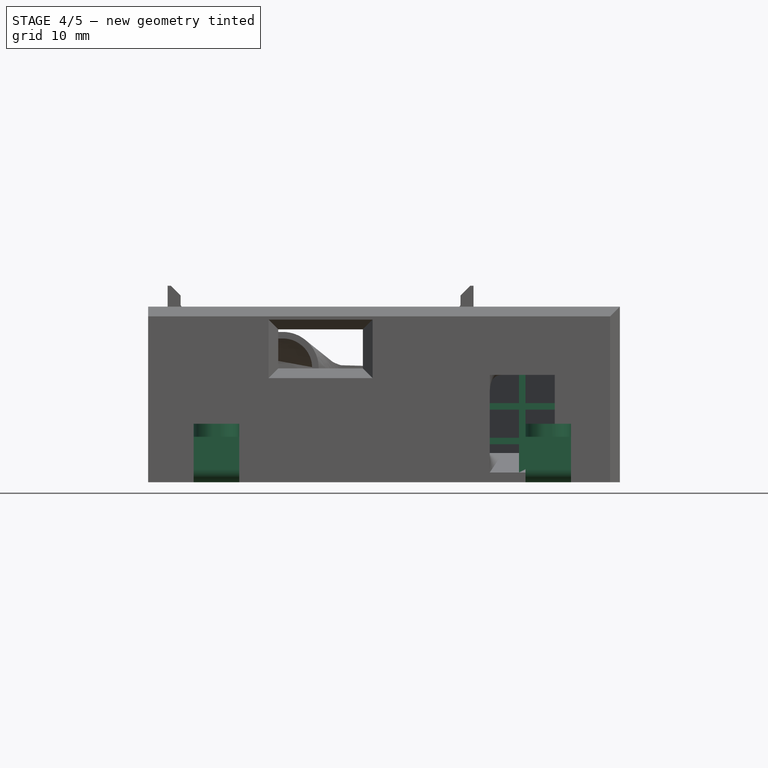
[diagram: stage 4 of 5 — front view after this stage's code; geometry added in this stage tinted green]
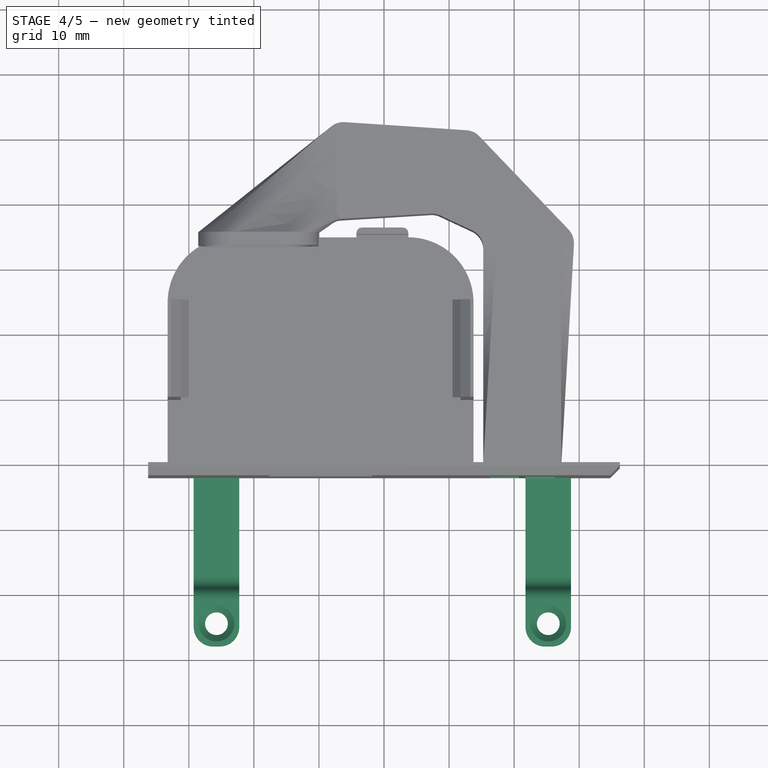
[diagram: stage 4 of 5 — top view after this stage's code; geometry added in this stage tinted green]
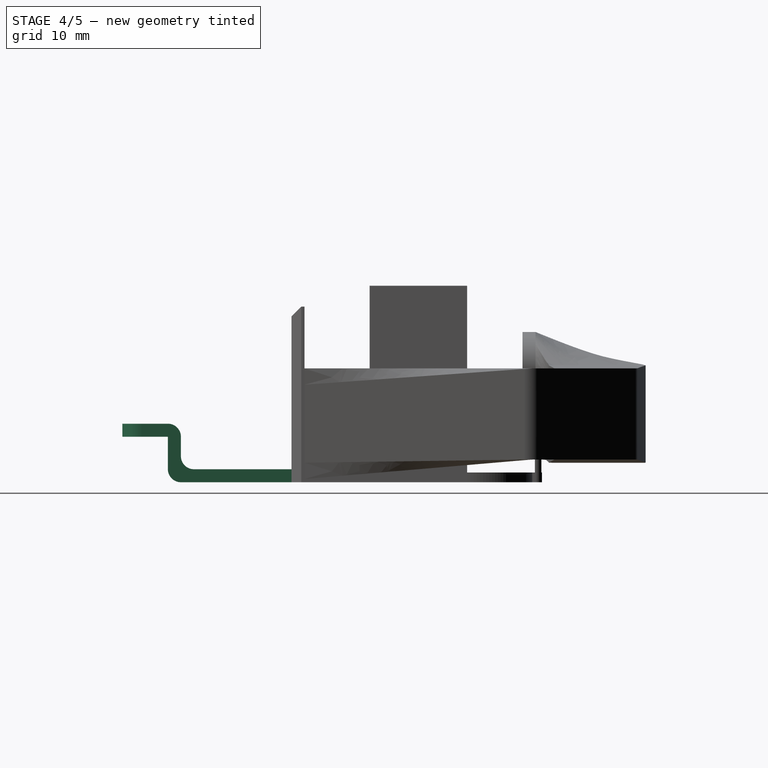
[diagram: stage 4 of 5 — right view after this stage's code; geometry added in this stage tinted green]
FEATURE [Sketcher::SketchObject] Sketch013
  ExternalGeometry = -> [Fillet003]
  FullyConstrained = true
  MapMode = 5
  Placement = pos=(36.25,0,0) rot=(0.707107,0,0.707107;3.14159rad)
  Support = -> [Fillet003]
  sketch-geometry (8):
    g0: LineSegment StartX=-13.5 StartY=2 StartZ=0 EndX=-11.5 EndY=2 EndZ=0
    g1: LineSegment StartX=-11.5 StartY=2 StartZ=0 EndX=-11.5 EndY=19 EndZ=0
    g2: LineSegment StartX=-11.5 StartY=19 StartZ=0 EndX=-4.5 EndY=19 EndZ=0
    g3: LineSegment StartX=-4.5 StartY=19 StartZ=0 EndX=-4.5 EndY=28 EndZ=0
    g4: LineSegment StartX=-4.5 StartY=28 StartZ=0 EndX=-6.5 EndY=28 EndZ=0
    g5: LineSegment StartX=-6.5 StartY=28 StartZ=0 EndX=-6.5 EndY=21 EndZ=0
    g6: LineSegment StartX=-6.5 StartY=21 StartZ=0 EndX=-13.5 EndY=21 EndZ=0
    g7: LineSegment StartX=-13.5 StartY=21 StartZ=0 EndX=-13.5 EndY=2 EndZ=0
  constraints (23):
    c: Horizontal(g0)
    c: Coincident(g0,g1)
    c: Vertical(g1)
    c: Coincident(g1,g2)
    c: Horizontal(g2)
    c: Coincident(g2,g3)
    c: Vertical(g3)
    c: Coincident(g3,g4)
    c: Horizontal(g4)
    c: Coincident(g4,g5)
    c: Vertical(g5)
    c: Coincident(g5,g6)
    c: Horizontal(g6)
    c: Coincident(g6,g7)
    c: Coincident(g7,g0)
    c: Vertical(g7)
    c: Equal(g0,g4)
    c: DistanceX(g4,g4) = 2
    c: Coincident(g0,g-3)
    c: DistanceY(g5,g5) = 7
    c: DistanceY(g2,g5) = 2
    c: DistanceY(g-1,g3) = 28
    c: Equal(g5,g6)
FEATURE [PartDesign::Pad] Pad007
  BaseFeature = -> Fillet003
  Direction = (1,0,-2e-16)
  Length = 10
  Length2 = 10
  Placement = pos=(0,0,0) rot=(1,0,0;1.5708rad)
  Profile = -> Sketch013
  ReferenceAxis = -> Sketch013 [N_Axis]
  Type = 3
  UpToFace = -> Fillet003 [Face18]
FEATURE [Sketcher::SketchObject] Sketch014
  ExternalGeometry = -> [Pad007]
  FullyConstrained = false
  MapMode = 5
  Placement = pos=(-1e-15,-1.5e-15,-4.5) rot=(0,0,1;3.14159rad)
  Support = -> [Pad007]
  sketch-geometry (16):
    g0: Circle CenterX=-25.25 CenterY=24.5 CenterZ=0 NormalX=0 NormalY=0 NormalZ=1 AngleXU=0 Radius=1.75
    g1: Circle CenterX=25.75 CenterY=24.5 CenterZ=0 NormalX=0 NormalY=0 NormalZ=1 AngleXU=0 Radius=1.75
    g2: LineSegment StartX=-25.25 StartY=24.5 StartZ=0 EndX=25.75 EndY=24.5 EndZ=0
    g3: LineSegment StartX=25.75 StartY=24.5 StartZ=0 EndX=36.25 EndY=24.5 EndZ=0
    g4: LineSegment StartX=-36.25 StartY=28 StartZ=0 EndX=-28.75 EndY=28 EndZ=0
    g5: LineSegment StartX=-28.75 StartY=28 StartZ=0 EndX=-28.75 EndY=2 EndZ=0
    g6: LineSegment StartX=-28.75 StartY=2 StartZ=0 EndX=-36.25 EndY=2 EndZ=0
    g7: LineSegment StartX=-36.25 StartY=2 StartZ=0 EndX=-36.25 EndY=28 EndZ=0
    g8: LineSegment StartX=-21.75 StartY=28 StartZ=0 EndX=22.25 EndY=28 EndZ=0
    g9: LineSegment StartX=22.25 StartY=28 StartZ=0 EndX=22.25 EndY=2 EndZ=0
    g10: LineSegment StartX=22.25 StartY=2 StartZ=0 EndX=-21.75 EndY=2 EndZ=0
    g11: LineSegment StartX=-21.75 StartY=2 StartZ=0 EndX=-21.75 EndY=28 EndZ=0
    g12: LineSegment StartX=29.25 StartY=28 StartZ=0 EndX=36.25 EndY=28 EndZ=0
    g13: LineSegment StartX=36.25 StartY=28 StartZ=0 EndX=36.25 EndY=2 EndZ=0
    g14: LineSegment StartX=36.25 StartY=2 StartZ=0 EndX=29.25 EndY=2 EndZ=0
    g15: LineSegment StartX=29.25 StartY=2 StartZ=0 EndX=29.25 EndY=28 EndZ=0
  constraints (42):
    c: Equal(g1,g0)
    c: Diameter(g1) = 3.5
    c: DistanceX(g0,g1) = 51
    c: Coincident(g2,g0)
    c: Coincident(g2,g1)
    c: Horizontal(g2)
    c: DistanceX(g1,g-3) = 10.5
    c: Coincident(g3,g1)
    c: Horizontal(g3)
    c: Coincident(g4,g5)
    c: Coincident(g5,g6)
    c: Coincident(g6,g7)
    c: Coincident(g7,g4)
    c: Horizontal(g4)
    c: Horizontal(g6)
    c: Vertical(g5)
    c: Coincident(g8,g9)
    c: Coincident(g9,g10)
    c: Coincident(g10,g11)
    c: Coincident(g11,g8)
    c: Horizontal(g8)
    c: Horizontal(g10)
    c: Vertical(g9)
    c: Vertical(g11)
    c: Coincident(g12,g13)
    c: Coincident(g13,g14)
    c: Coincident(g14,g15)
    c: Coincident(g15,g12)
    c: Horizontal(g12)
    c: Horizontal(g14)
    c: Vertical(g15)
    c: Coincident(g13,g-7)
    c: Coincident(g12,g-6)
    c: PointOnObject(g9,g14)
    c: Coincident(g6,g-5)
    c: Coincident(g4,g-6)
    c: PointOnObject(g8,g-6)
    c: DistanceX(g4,g0) = 3.5
    c: DistanceX(g4,g8) = 7
    c: DistanceX(g8,g12) = 7
    c: DistanceX(g1,g12) = 3.5
    c: DistanceY(g13,g3) = 22.5
FEATURE [PartDesign::Pocket] Pocket002
  BaseFeature = -> Pad007
  Direction = (-2e-16,-3e-16,-1)
  Length = 5
  Length2 = 5
  Placement = pos=(0,0,0) rot=(1,0,0;1.5708rad)
  Profile = -> Sketch014
  ReferenceAxis = -> Sketch014 [N_Axis]
  Refine = true
  Type = 1
FEATURE [Sketcher::SketchObject] Sketch015
  ExternalGeometry = -> [Pocket002]
  FullyConstrained = true
  MapMode = 5
  Placement = pos=(0,-2,1.3e-15) rot=(1,0,0;1.5708rad)
  Support = -> [Pocket002]
  sketch-geometry (20):
    g0: LineSegment StartX=20.75 StartY=3 StartZ=0 EndX=21.75 EndY=3 EndZ=0
    g1: LineSegment StartX=21.75 StartY=3 StartZ=0 EndX=21.75 EndY=-1.33333 EndZ=0
    g2: LineSegment StartX=21.75 StartY=-1.33333 StartZ=0 EndX=26.25 EndY=-1.33333 EndZ=0
    g3: LineSegment StartX=26.25 StartY=-1.33333 StartZ=0 EndX=26.25 EndY=-2.33333 EndZ=0
    g4: LineSegment StartX=26.25 StartY=-2.33333 StartZ=0 EndX=21.75 EndY=-2.33333 EndZ=0
    g5: LineSegment StartX=21.75 StartY=-2.33333 StartZ=0 EndX=21.75 EndY=-6.66667 EndZ=0
    g6: LineSegment StartX=21.75 StartY=-6.66667 StartZ=0 EndX=26.25 EndY=-6.66667 EndZ=0
    g7: LineSegment StartX=26.25 StartY=-6.66667 StartZ=0 EndX=26.25 EndY=-7.66667 EndZ=0
    g8: LineSegment StartX=26.25 StartY=-7.66667 StartZ=0 EndX=21.75 EndY=-7.66667 EndZ=0
    g9: LineSegment StartX=21.75 StartY=-7.66667 StartZ=0 EndX=21.75 EndY=-12 EndZ=0
    g10: LineSegment StartX=21.75 StartY=-12 StartZ=0 EndX=20.75 EndY=-12 EndZ=0
    g11: LineSegment StartX=20.75 StartY=-12 StartZ=0 EndX=20.75 EndY=-7.66667 EndZ=0
    g12: LineSegment StartX=20.75 StartY=-7.66667 StartZ=0 EndX=16.25 EndY=-7.66667 EndZ=0
    g13: LineSegment StartX=16.25 StartY=-7.66667 StartZ=0 EndX=16.25 EndY=-6.66667 EndZ=0
    g14: LineSegment StartX=16.25 StartY=-6.66667 StartZ=0 EndX=20.75 EndY=-6.66667 EndZ=0
    g15: LineSegment StartX=20.75 StartY=-6.66667 StartZ=0 EndX=20.75 EndY=-2.33333 EndZ=0
    g16: LineSegment StartX=20.75 StartY=-2.33333 StartZ=0 EndX=16.25 EndY=-2.33333 EndZ=0
    g17: LineSegment StartX=16.25 StartY=-2.33333 StartZ=0 EndX=16.25 EndY=-1.33333 EndZ=0
    g18: LineSegment StartX=16.25 StartY=-1.33333 StartZ=0 EndX=20.75 EndY=-1.33333 EndZ=0
    g19: LineSegment StartX=20.75 StartY=-1.33333 StartZ=0 EndX=20.75 EndY=3 EndZ=0
  constraints (60):
    c: Horizontal(g0)
    c: Coincident(g0,g1)
    c: Vertical(g1)
    c: Coincident(g1,g2)
    c: Horizontal(g2)
    c: Coincident(g2,g3)
    c: Coincident(g3,g4)
    c: Coincident(g4,g5)
    c: Coincident(g5,g6)
    c: Coincident(g6,g7)
    c: Coincident(g7,g8)
    c: Coincident(g8,g9)
    c: Coincident(g9,g10)
    c: Coincident(g10,g11)
    c: Coincident(g11,g12)
    c: Horizontal(g12)
    c: Coincident(g12,g13)
    c: Vertical(g13)
    c: Coincident(g13,g14)
    c: Coincident(g14,g15)
    c: Coincident(g15,g16)
    c: Coincident(g16,g17)
    c: Vertical(g17)
    c: Coincident(g17,g18)
    c: Coincident(g18,g19)
    c: Coincident(g19,g0)
    c: Vertical(g19)
    c: Vertical(g3)
    c: Vertical(g5)
    c: Vertical(g7)
    c: Vertical(g9)
    c: Vertical(g11)
    c: Vertical(g15)
    c: Horizontal(g6)
    c: Horizontal(g8)
    c: Horizontal(g10)
    c: Horizontal(g4)
    c: Horizontal(g18)
    c: Horizontal(g16)
    c: Horizontal(g14)
    c: Equal(g17,g3)
    c: Equal(g3,g7)
    c: Equal(g7,g13)
    c: Equal(g12,g14)
    c: Equal(g14,g16)
    c: Equal(g16,g18)
    c: Equal(g18,g2)
    c: Equal(g2,g4)
    c: Equal(g4,g6)
    c: Equal(g6,g8)
    c: Equal(g10,g7)
    c: Equal(g1,g19)
    c: Equal(g19,g15)
    c: Equal(g15,g5)
    c: Equal(g5,g9)
    c: DistanceX(g0,g0) = 1
    c: PointOnObject(g9,g-3)
    c: PointOnObject(g3,g-6)
    c: PointOnObject(g0,g-4)
    c: PointOnObject(g16,g-5)
FEATURE [PartDesign::Pad] Pad008
  BaseFeature = -> Pocket002
  Direction = (0,-1,7e-16)
  Length = 2
  Length2 = 10
  Placement = pos=(0,0,0) rot=(1,0,0;1.5708rad)
  Profile = -> Sketch015
  ReferenceAxis = -> Sketch015 [N_Axis]
  Refine = true
  Reversed = true
  Type = 0
FEATURE [PartDesign::Chamfer] Chamfer002
  Angle = 45
  Base = -> Pad008 [Edge399,Edge394]
  BaseFeature = -> Pad008
  ChamferType = 0
  FlipDirection = false
  Placement = pos=(0,0,0) rot=(1,0,0;1.5708rad)
  Size = 1
  Size2 = 1
  SupportTransform = false
  UseAllEdges = false
FEATURE [PartDesign::Fillet] Fillet004
  Base = -> Chamfer002 [Edge108,Edge99,Edge14,Edge16]
  BaseFeature = -> Chamfer002
  Placement = pos=(0,0,0) rot=(1,0,0;1.5708rad)
  Radius = 3
  SupportTransform = false
  UseAllEdges = false
FEATURE [PartDesign::Fillet] Fillet005
  Base = -> Fillet004 [Edge253,Edge75,Edge108,Edge3,Edge18,Edge35]
  BaseFeature = -> Fillet004
  Placement = pos=(0,0,0) rot=(1,0,0;1.5708rad)
  Radius = 2
  SupportTransform = false
  UseAllEdges = false
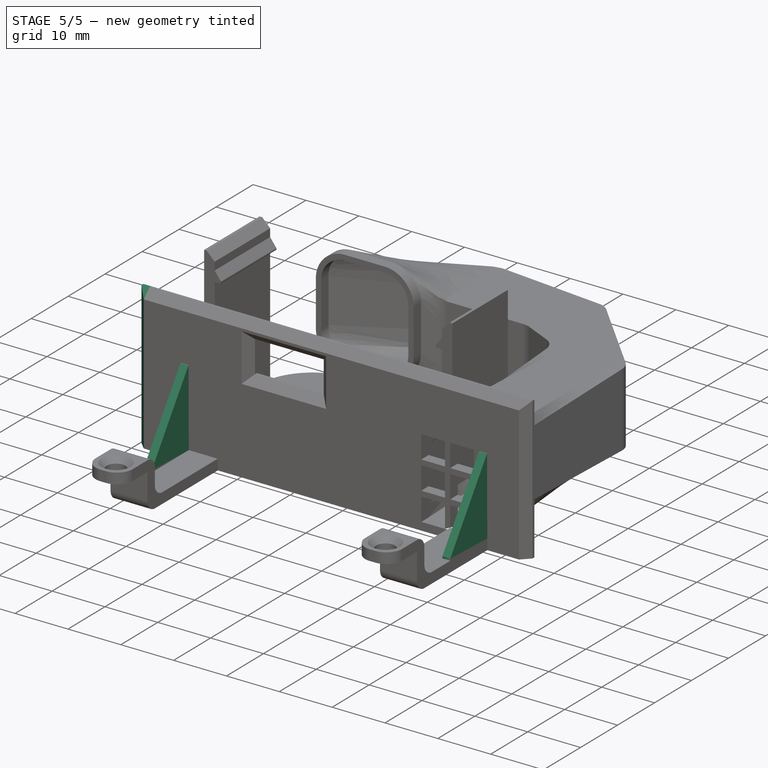
[diagram: stage 5 of 5 — iso view after this stage's code; geometry added in this stage tinted green]
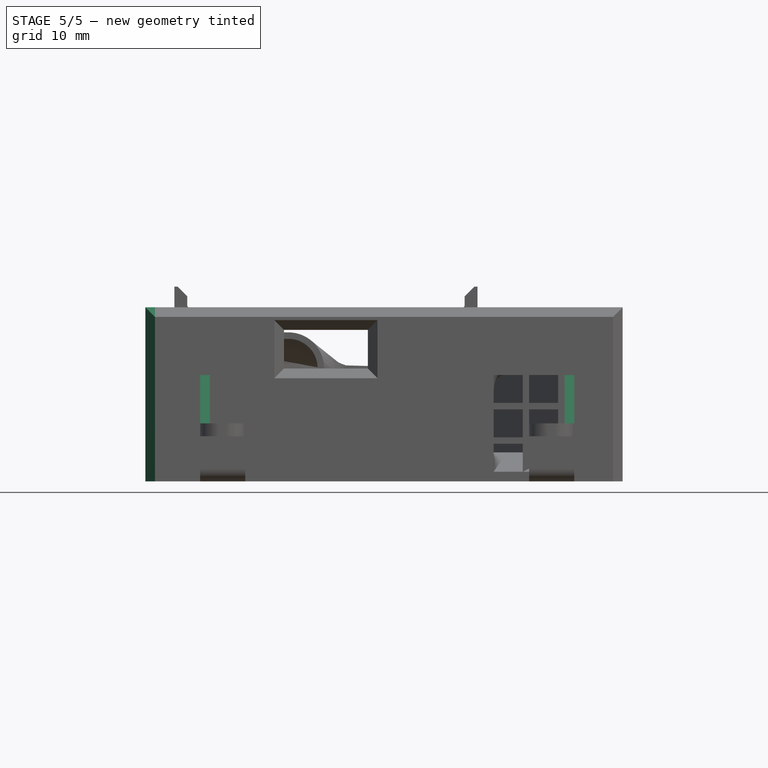
[diagram: stage 5 of 5 — front view after this stage's code; geometry added in this stage tinted green]
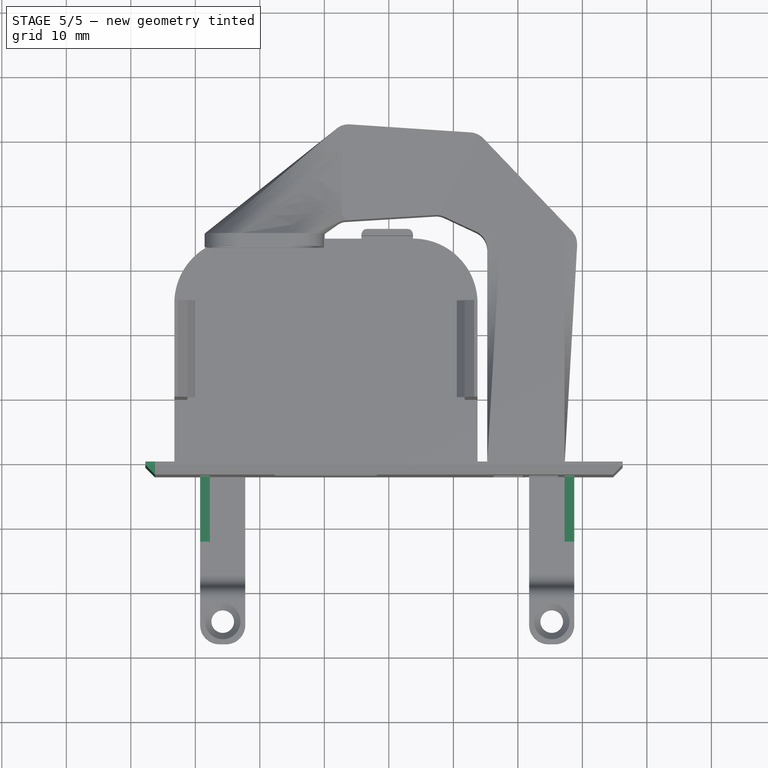
[diagram: stage 5 of 5 — top view after this stage's code; geometry added in this stage tinted green]
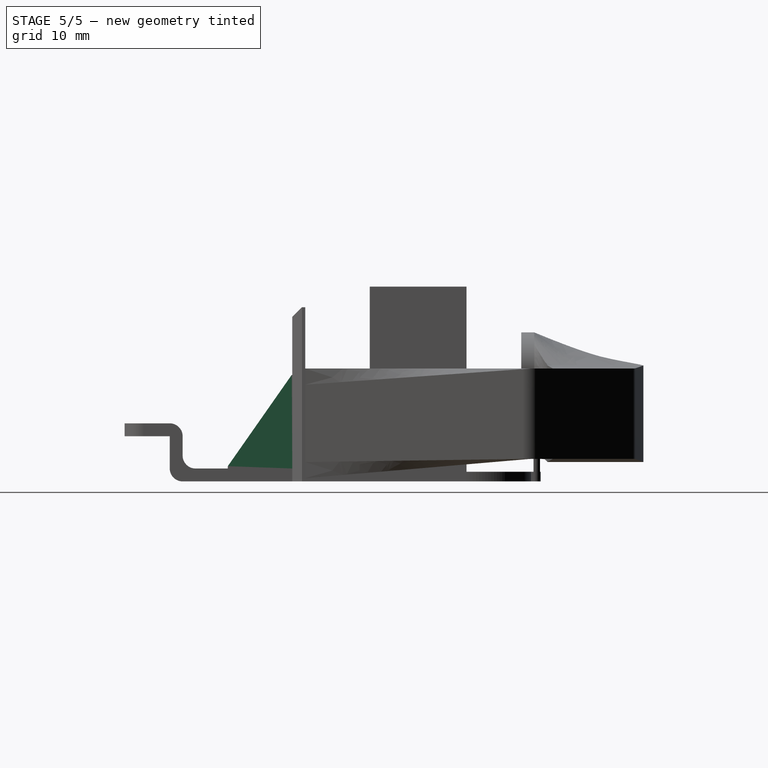
[diagram: stage 5 of 5 — right view after this stage's code; geometry added in this stage tinted green]
FEATURE [Sketcher::SketchObject] Sketch016
  ExternalGeometry = -> [Fillet005]
  FullyConstrained = true
  MapMode = 5
  Placement = pos=(-2.6e-15,-6.4e-15,-11.5) rot=(0,0,1;3.14159rad)
  Support = -> [Fillet005]
  sketch-geometry (8):
    g0: LineSegment StartX=-28.75 StartY=2 StartZ=0 EndX=-27.25 EndY=2 EndZ=0
    g1: LineSegment StartX=-27.25 StartY=2 StartZ=0 EndX=-27.25 EndY=12 EndZ=0
    g2: LineSegment StartX=-27.25 StartY=12 StartZ=0 EndX=-28.75 EndY=12 EndZ=0
    g3: LineSegment StartX=-28.75 StartY=12 StartZ=0 EndX=-28.75 EndY=2 EndZ=0
    g4: LineSegment StartX=29.25 StartY=2 StartZ=0 EndX=27.75 EndY=2 EndZ=0
    g5: LineSegment StartX=27.75 StartY=2 StartZ=0 EndX=27.75 EndY=12 EndZ=0
    g6: LineSegment StartX=27.75 StartY=12 StartZ=0 EndX=29.25 EndY=12 EndZ=0
    g7: LineSegment StartX=29.25 StartY=12 StartZ=0 EndX=29.25 EndY=2 EndZ=0
  constraints (22):
    c: Coincident(g0,g1)
    c: Coincident(g1,g2)
    c: Coincident(g2,g3)
    c: Coincident(g3,g0)
    c: Horizontal(g0)
    c: Horizontal(g2)
    c: Vertical(g1)
    c: Vertical(g3)
    c: Coincident(g0,g-4)
    c: DistanceX(g2,g2) = 1.5
    c: DistanceY(g3,g3) = 10
    c: Coincident(g4,g5)
    c: Coincident(g5,g6)
    c: Coincident(g6,g7)
    c: Coincident(g7,g4)
    c: Horizontal(g4)
    c: Horizontal(g6)
    c: Vertical(g5)
    c: Vertical(g7)
    c: Coincident(g4,g-3)
    c: Equal(g6,g2)
    c: Equal(g7,g3)
FEATURE [PartDesign::Pad] Pad009
  BaseFeature = -> Fillet005
  Direction = (2e-16,6e-16,1)
  Length = 10
  Length2 = 10
  Placement = pos=(0,0,0) rot=(1,0,0;1.5708rad)
  Profile = -> Sketch016
  ReferenceAxis = -> Sketch016 [N_Axis]
  Type = 3
  UpToFace = -> Fillet005 [Face28]
FEATURE [PartDesign::Chamfer] Chamfer003
  Angle = 55
  Base = -> Pad009 [Edge183]
  BaseFeature = -> Pad009
  ChamferType = 2
  FlipDirection = false
  Placement = pos=(0,0,0) rot=(1,0,0;1.5708rad)
  Size = 9.9
  Size2 = 1
  SupportTransform = false
  UseAllEdges = false
FEATURE [PartDesign::Chamfer] Chamfer004
  Angle = 55
  Base = -> Chamfer003 [Edge108]
  BaseFeature = -> Chamfer003
  ChamferType = 2
  FlipDirection = false
  Placement = pos=(0,0,0) rot=(1,0,0;1.5708rad)
  Refine = true
  Size = 9.9
  Size2 = 1
  SupportTransform = false
  UseAllEdges = false
FEATURE [Sketcher::SketchObject] Sketch017
  ExternalGeometry = -> [Chamfer004]
  FullyConstrained = true
  MapMode = 5
  Placement = pos=(-36.25,0,0) rot=(0.707107,0,-0.707107;3.14159rad)
  Support = -> [Chamfer004]
  sketch-geometry (5):
    g0: LineSegment StartX=13.5 StartY=2 StartZ=0 EndX=-12 EndY=2 EndZ=0
    g1: LineSegment StartX=-12 StartY=2 StartZ=0 EndX=-13.5 EndY=0.5 EndZ=0
    g2: LineSegment StartX=-13.5 StartY=0.5 StartZ=0 EndX=-13.5 EndY=-9e-15 EndZ=0
    g3: LineSegment StartX=-13.5 StartY=-9e-15 StartZ=0 EndX=13.5 EndY=9e-15 EndZ=0
    g4: LineSegment StartX=13.5 StartY=9e-15 StartZ=0 EndX=13.5 EndY=2 EndZ=0
  constraints (10):
    c: Coincident(g-5,g0)
    c: Coincident(g0,g-3)
    c: Coincident(g0,g1)
    c: Coincident(g1,g-3)
    c: Coincident(g1,g2)
    c: Coincident(g2,g-4)
    c: Coincident(g2,g3)
    c: Coincident(g3,g-5)
    c: Coincident(g3,g4)
    c: Coincident(g4,g0)
FEATURE [PartDesign::Pad] Pad010
  BaseFeature = -> Chamfer004
  Direction = (-1,0,-2e-16)
  Length = 1.5
  Length2 = 10
  Placement = pos=(0,0,0) rot=(1,0,0;1.5708rad)
  Profile = -> Sketch017
  ReferenceAxis = -> Sketch017 [N_Axis]
  Refine = true
  Type = 4
FEATURE [PartDesign::Chamfer] Chamfer005
  Angle = 45
  Base = -> Pad010 [Edge350]
  BaseFeature = -> Pad010
  ChamferType = 0
  FlipDirection = false
  Placement = pos=(0,0,0) rot=(1,0,0;1.5708rad)
  Refine = true
  Size = 1.49999
  Size2 = 1
  SupportTransform = false
  UseAllEdges = false
FEATURE [PartDesign::Body] Body
  Group = -> [Sketch,Pad,Sketch001,Pocket,Chamfer,Sketch002,Pocket001,Sketch003,Sketch004,Pad001,Sketch005,Pad002,Sketch006,Pad003,Chamfer001,Fillet,Fillet001,Sketch007,Pad004,Sketch008,Pad005,Fillet002,Sketch009,Sketch010,Sketch011,DatumPlane,Sketch012,AdditiveLoft,Pad006,Fillet003,Sketch013,Pad007,Sketch014,Pocket002,Sketch015,Pad008,Chamfer002,Fillet004,Fillet005,Sketch016,Pad009,Chamfer003,Chamfer004,+3 more]
  Origin = -> Origin
  Tip = -> Chamfer005
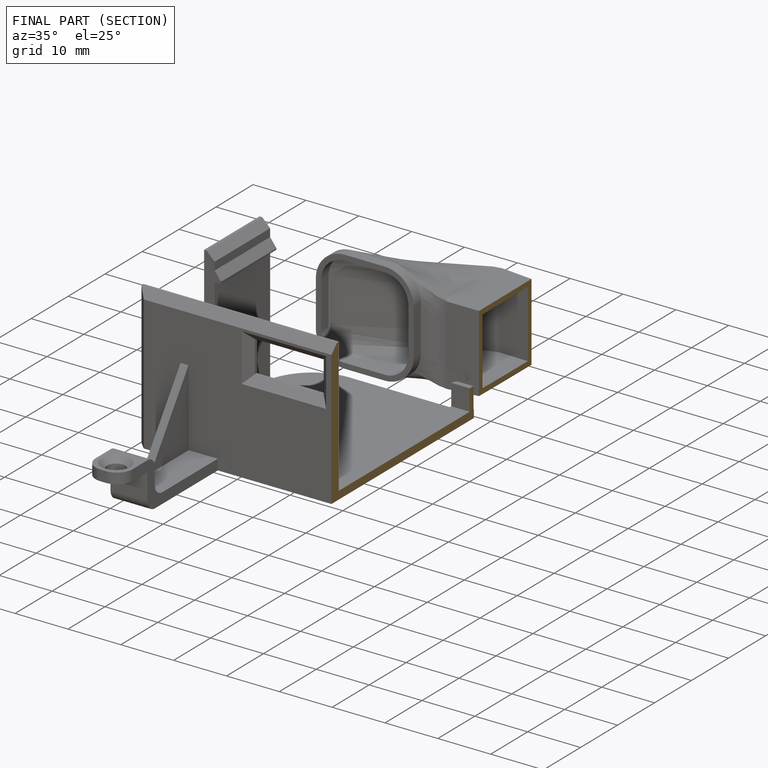
[diagram: finished part — half-section view (interior)]
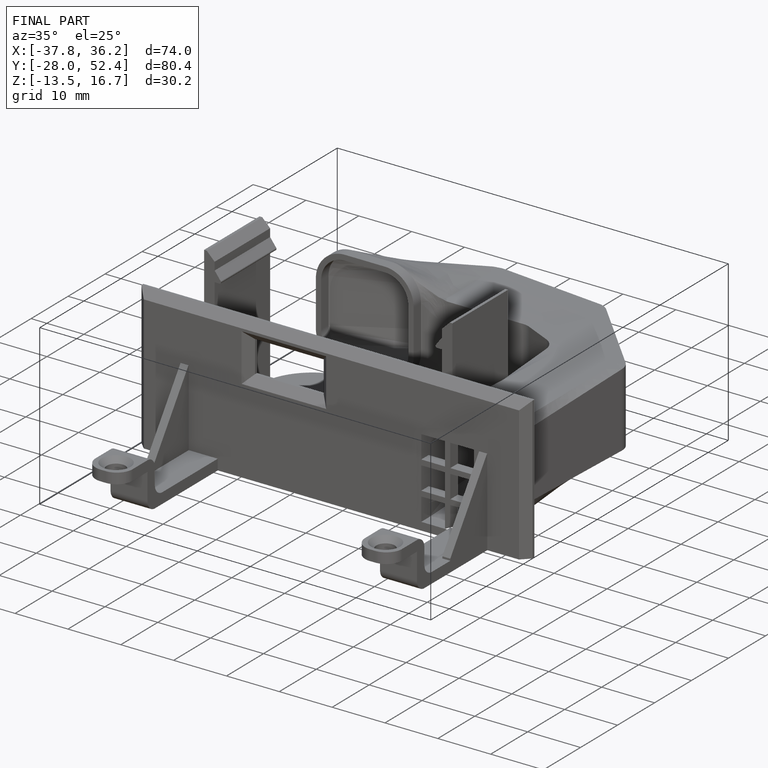
[diagram: finished part — iso view with bounding-box wireframe]
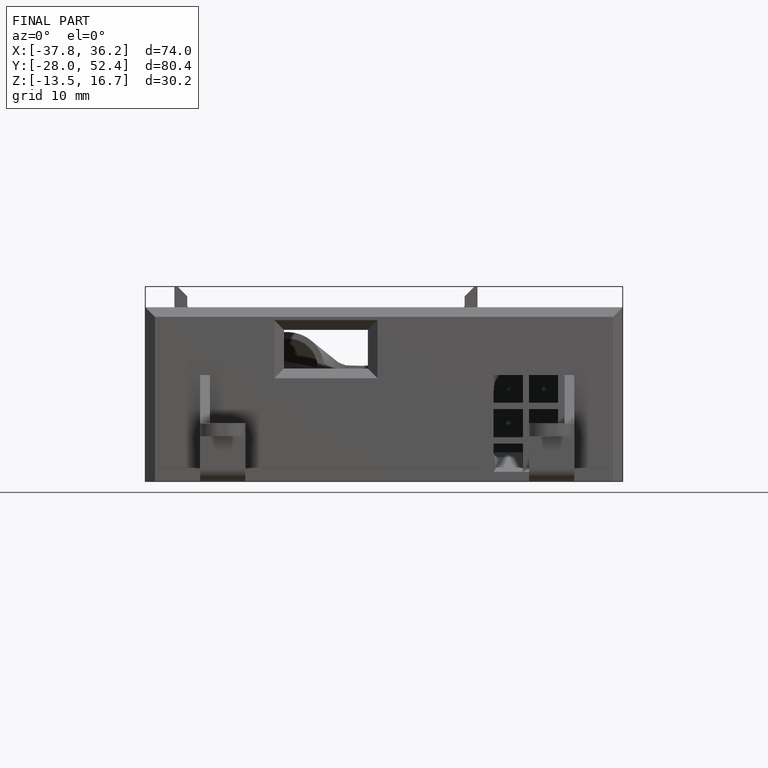
[diagram: finished part — front view with bounding-box wireframe]
